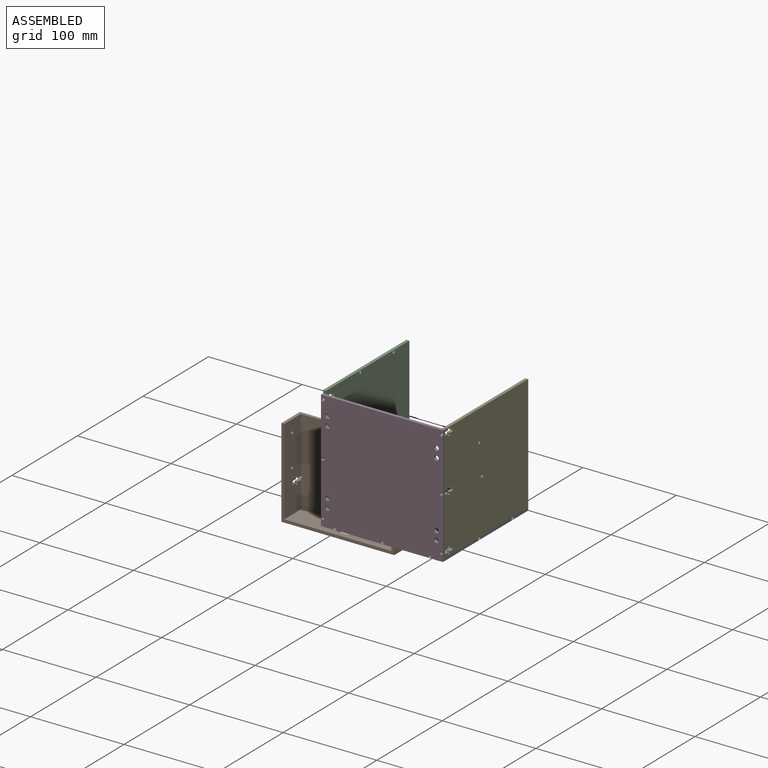
[diagram: assembled view]
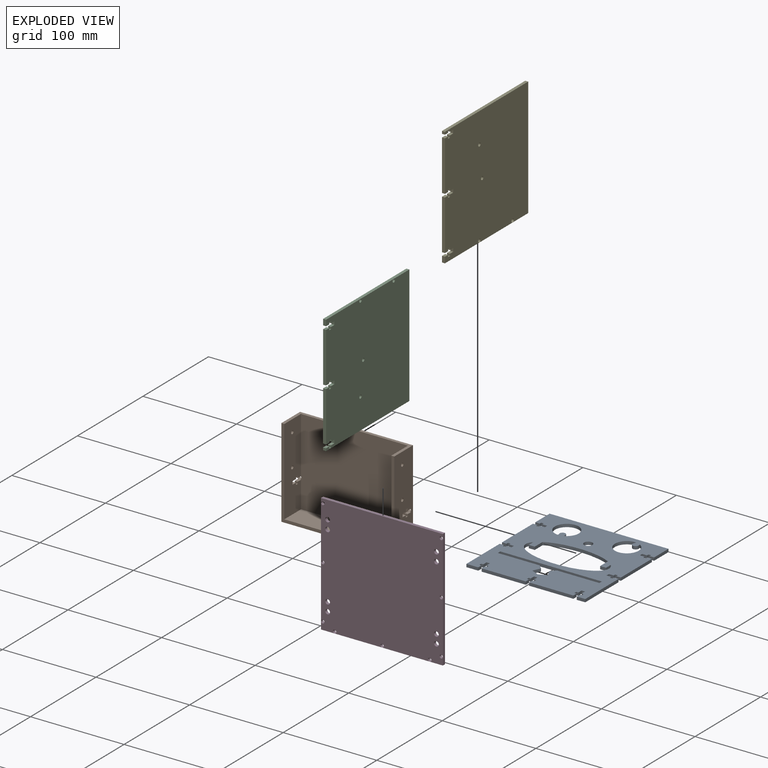
[diagram: exploded view]
GUIDED TOUR — MATED ASSEMBLY WITH SUBASSEMBLIES (Onshape document f5c955dc423d630a37467125, AutoMate assembly f5c955dc423d630a37467125_b046f50d886893bcf47895f5_0e2b2fad7b4f0885c0d2d234_default)

This assembly has 8 component occurrences arranged in 5 top-level units: 4 individual components plus 1 subassembly (S0). The tour has two levels: first the top level, where each subassembly is treated as one rigid unit; then each subassembly is toured internally in its own section (nesting deeper than one subassembly level is flattened into its subassembly's section).

Components are labeled P0..P7 across the whole record; subassembly units are labeled S0..S0. A mate is a constraint between two units; its type names the relative motion it leaves free:
  PLANAR — leaves sliding in the plane through the listed point (normal = the listed direction) and rotation about that normal free.
Axis/direction vectors are unit vectors and 'through' points are millimeter coordinates, both in the assembly's world frame.

TOP-LEVEL MATES (between units; each subassembly's internal mates are listed in its own section)
  1. PLANAR "Planar 6": P6 <-> P4, direction (0.000, 0.000, 1.000) through (39.11, 52.27, 65.40) mm
  2. PLANAR "Planar 4": P6 <-> P4, direction (1.000, 0.000, 0.000) through (40.69, 52.88, 1.94) mm
  3. PLANAR "Planar 2": P0 <-> P4, direction (1.000, 0.000, 0.000) through (40.69, 14.17, -60.01) mm
  4. PLANAR "Planar 7": P3 <-> P0, direction (0.000, 0.000, -1.000) through (-87.89, 52.27, -58.42) mm
  5. PLANAR "Planar 1": P0 <-> P4, direction (0.000, 0.000, -1.000) through (4.37, -11.23, -61.60) mm
  6. PLANAR "Planar 9": P3 <-> P0, direction (0.000, 1.000, 0.000) through (-87.89, 115.77, 5.08) mm
  7. PLANAR "Planar 8": P3 <-> P4, direction (-1.000, 0.000, 0.000) through (-89.48, 52.88, 5.04) mm
  8. PLANAR "Planar 3": P0 <-> P4, direction (0.000, -1.000, 0.000) through (4.37, -11.23, -60.01) mm
  9. PLANAR "Planar 5": P6 <-> P0, direction (0.000, 1.000, 0.000) through (39.11, 115.77, 1.90) mm

TOP-LEVEL ASSEMBLY ORDER
  1. S0 — the base component [order verified]
  2. P3 [order verified]
  3. P4 [order verified]
  4. P6 [order verified]
  5. P0 [order verified]
Order-tag legend:
  [order verified] — this step's position reverses a verified removal order: the component was checked to insert without passing through the ones already placed.

Of the 8 component occurrences, 8 carry the full construction recipe — the FeatureScript program that regenerates the part's solid from scratch; the rest are supplied as boundary geometry only. Each toured unit is shown spotlighted twice — assembled, then exploded with a leader line back to its socket (green = recipe-attached component, orange = geometry-only, blue = subassembly unit; the rest desaturated gray).
NOTE — document 2 of 2 of this assembly tour. The two overview renders and the header above are repeated from document 1; the component sections below continue where the previous document stopped.
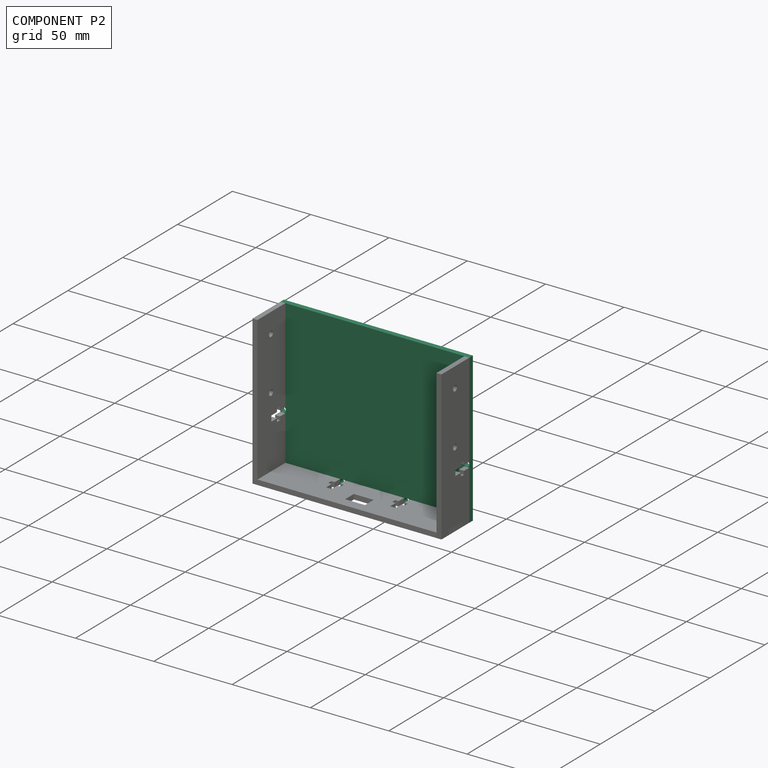
[diagram: component P2 — assembled]
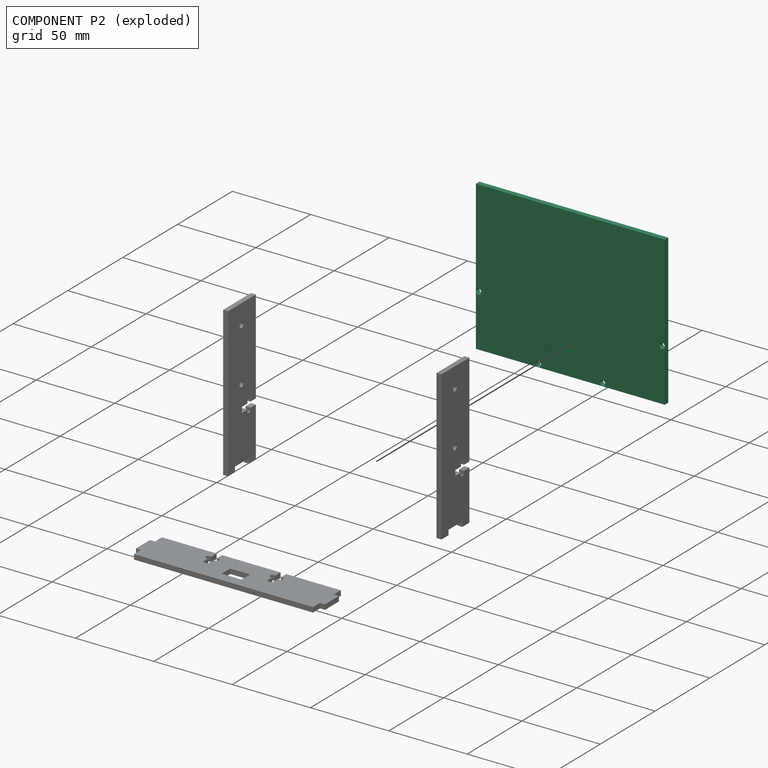
[diagram: component P2 — exploded]
COMPONENT P2 — recipe-attached (CADFS 00168642, mesh-verified: the recipe's output STEP matches this component's geometry to below the mesh-comparison resolution (tessellation chordal tolerance ~0.231 mm)).
Held by: PLANAR mate "Planar 9" to P5; PLANAR mate "Planar 1" to P1; PLANAR mate "Planar 2" to P1; PLANAR mate "Planar 9" to P5; PLANAR mate "Planar 1" to P1; PLANAR mate "Planar 2" to P1.
Construction recipe (FeatureScript — the CAD program that rebuilds this solid; sketch coordinates are in the units given by the * unit suffixes, e.g. mm):

FeatureScript 1511;
import(path : "onshape/std/geometry.fs", version : "1511.0");
import(path : "onshape/std/common.fs", version : "1511.0");
const mm = millimeter;
const VERTEX = EntityType.VERTEX;
const EDGE = EntityType.EDGE;
const FACE = EntityType.FACE;
const BODY = EntityType.BODY;
function v(x, y){return vector(x, y);}
function OD(order){return orderDisambiguation(order);}
function OSD(set){return originalSetDisambiguation(set);}
function TD(topology){return topologyDisambiguation(topology);}
function TDD(query){return trueDependencyDisambiguation(query);}
function sQuery(a, b, c) {return sketchEntityQuery(a, b, c);}

annotation { "Feature Type Name" : "Feature", "Feature Type Description" : "" }
export const myFeature = defineFeature(function(context is Context, id is Id, definition is map)
    precondition{}
    {
        {
            var Q0;
            Q0=qCreatedBy(makeId("Front.planeOp"),FACE);
            var sketch = newSketch(context, id + "F0", { "sketchPlane" : qUnion([Q0])});
            skLineSegment(sketch, "E0.bottom", {"start": v(60.33, -47.63) * mm, "end": v(-60.33, -47.63) * mm});
            skLineSegment(sketch, "E0.top", {"start": v(60.33, 47.63) * mm, "end": v(-60.33, 47.63) * mm});
            skLineSegment(sketch, "E0.left", {"start": v(60.33, -47.63) * mm, "end": v(60.33, 47.63) * mm});
            skLineSegment(sketch, "E0.right", {"start": v(-60.33, -47.63) * mm, "end": v(-60.33, 47.62) * mm});
            skPoint(sketch, "E0.middle", {"position": v(0, 0) * mm});
            skSolve(sketch);
        }
        {
            var Q0;
            Q0=makeQuery(id+"F0.imprint","IMPRINT",FACE,{"disambiguationData":[TD([[makeQuery(id+"F0.imprint","IMPRINT",EDGE,{"derivedFrom":sQuery(id+"F0.wireOp",EDGE,"E0.bottom")}),-1.0]])]});
            extrude(context, id + "F1", {"entities" : qUnion([Q0]), "endBound" : BoundingType.SYMMETRIC, "depth" : 3.17 * mm});
        }
        {
            var Q0;
            Q0=makeQuery(id+"F1.opExtrude","CAP_FACE",FACE,{"disambiguationData":[OSD([sQuery(id+"F0.wireOp",EDGE,"E0.bottom"),sQuery(id+"F0.wireOp",EDGE,"E0.top"),sQuery(id+"F0.wireOp",EDGE,"E0.left"),sQuery(id+"F0.wireOp",EDGE,"E0.right")])],"isStart":false});
            var sketch = newSketch(context, id + "F2", { "sketchPlane" : qUnion([Q0])});
            skCircle(sketch, "E1", {"center": v(-20.45, -45.85) * mm, "radius": 1.78 * mm});
            skPoint(sketch, "E1.centerSnap0", {"position": v(0, -47.63) * mm});
            skCircle(sketch, "E2", {"center": v(-58.55, -14.1) * mm, "radius": 1.78 * mm});
            skCircle(sketch, "E3.MirrorC", {"center": v(58.55, -14.1) * mm, "radius": 1.78 * mm});
            skCircle(sketch, "E4.MirrorC", {"center": v(20.45, -45.85) * mm, "radius": 1.78 * mm});
            skSolve(sketch);
        }
        {
            var Q0;
            Q0=sQuery(id+"F2.wireOp",VERTEX,"E2.center");
            var Q1;
            Q1=sQuery(id+"F2.wireOp",VERTEX,"E1.center");
            var Q2;
            Q2=sQuery(id+"F2.wireOp",VERTEX,"E3.MirrorC.center");
            var Q3;
            Q3=sQuery(id+"F2.wireOp",VERTEX,"E4.MirrorC.center");
            var Q4;
            Q4=makeQuery(id+"F1.opExtrude","SWEPT_BODY",BODY,{"disambiguationData":[OSD([sQuery(id+"F0.wireOp",EDGE,"E0.bottom"),sQuery(id+"F0.wireOp",EDGE,"E0.top"),sQuery(id+"F0.wireOp",EDGE,"E0.left"),sQuery(id+"F0.wireOp",EDGE,"E0.right")])]});
            hole(context, id + "F3", {"style" : HoleStyle.SIMPLE, "endStyle" : HoleEndStyle.THROUGH, "holeDiameter" : 3.56 * mm, "locations" : qUnion([Q0, Q1, Q2, Q3]), "scope" : qUnion([Q4]), "isTappedThrough" : true});
        }
    });
PROVENANCE & LICENSES
Assembly (occurrences, transforms, mates, per-part STEP geometry): AutoMate dataset, Zenodo record 7776208, CC0.
Construction recipes: CADFS (HuggingFace VladPyatov/CADFS, CC-BY-4.0, layered over the ABC dataset), FeatureScript reconstruction programs keyed by ABC model id.
Join: ABC meta listings map ABC model id -> Onshape documentId; within a shared document, parts are matched by geometric signature (bounding-box dims + volume at 0.1% relative tolerance, exact B-rep face/solid counts).
Verification: 8 of this assembly's 8 components carry a recipe attachment, and every attachment is mesh-verified: the CADFS STEP and the AutoMate member STEP were compared as meshes in their shared local frame (symmetric sampled-point-to-mesh distance); worst across the 8 attachments: below the mesh-comparison resolution (tessellation chordal tolerance ~0.273 mm) on a 182 mm part.
Renders: orthographic iso camera (az 35 / el 25); the floor grid conveys scale (grid pitch printed in each image; no ruler). In the exploded view each component is displaced by its stored offset vector: the offsets alone carry the explosion direction (mate normal/axis signs are not orientation cues and do not encode it), and separation distances are assigned per mate-chain, not proportionally to assembly-order depth.
